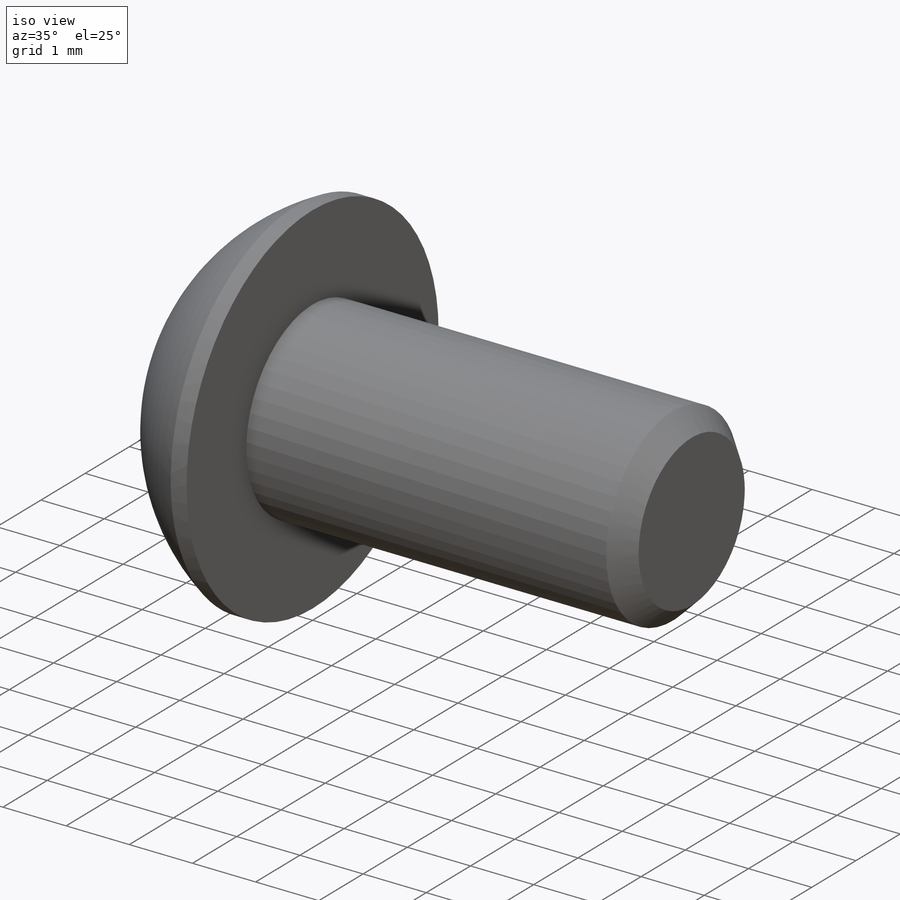
[diagram: iso view]
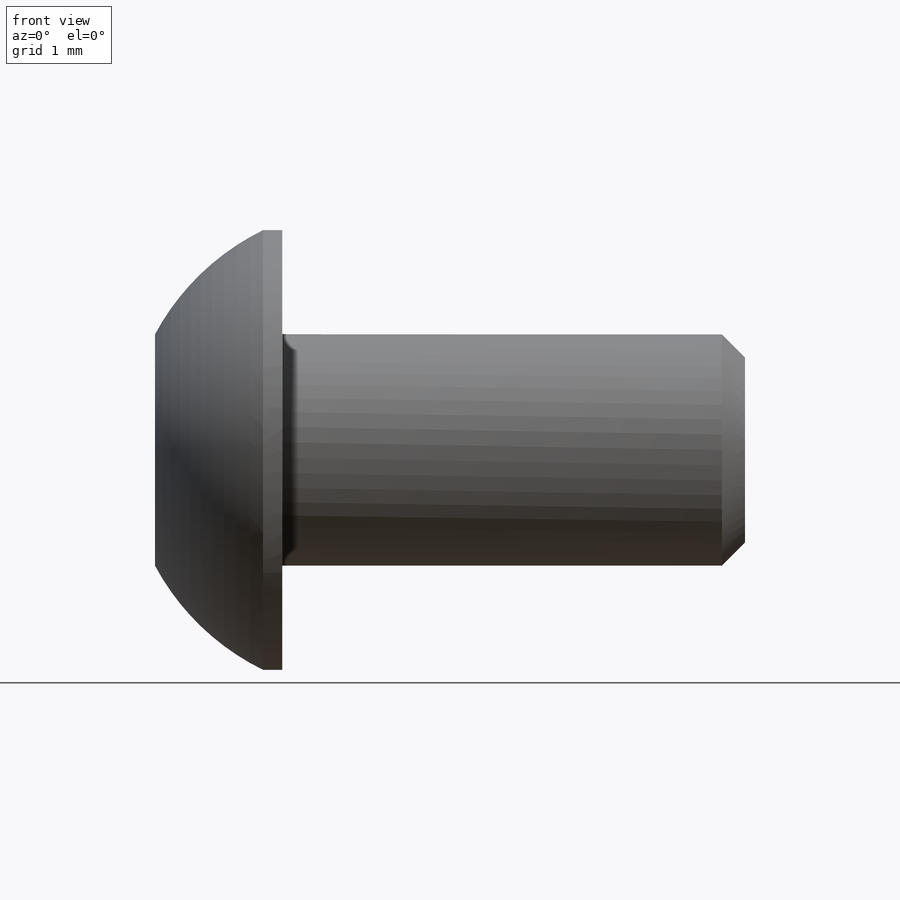
[diagram: front view]
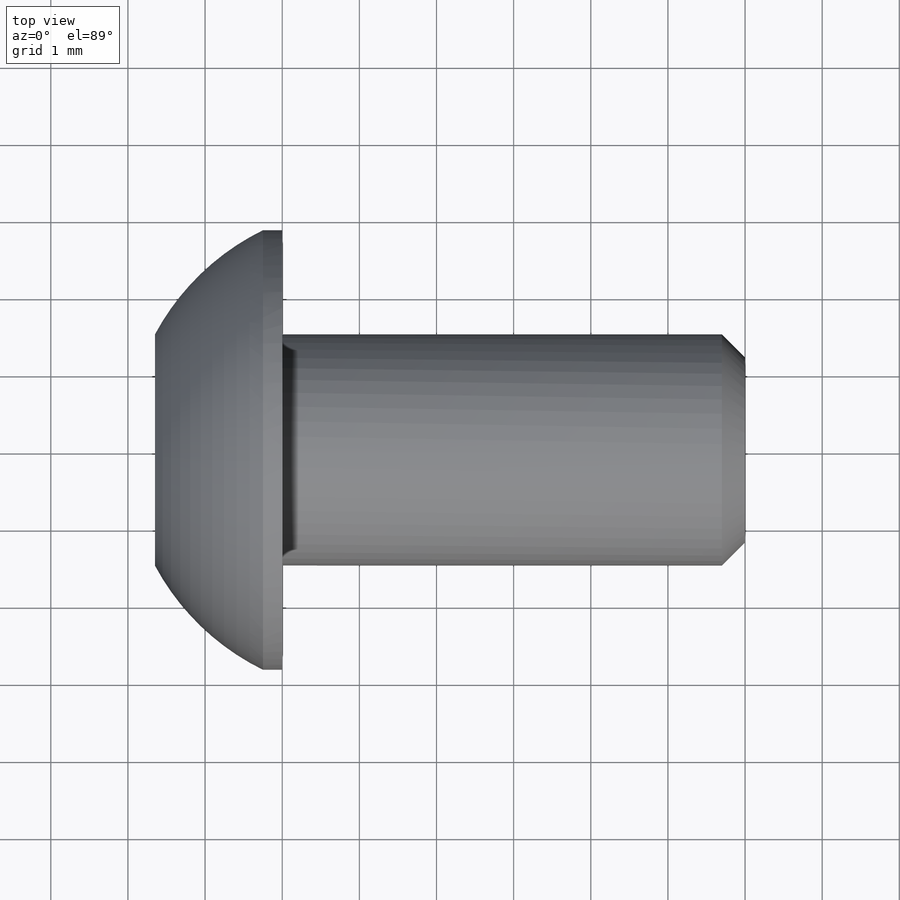
[diagram: top view]
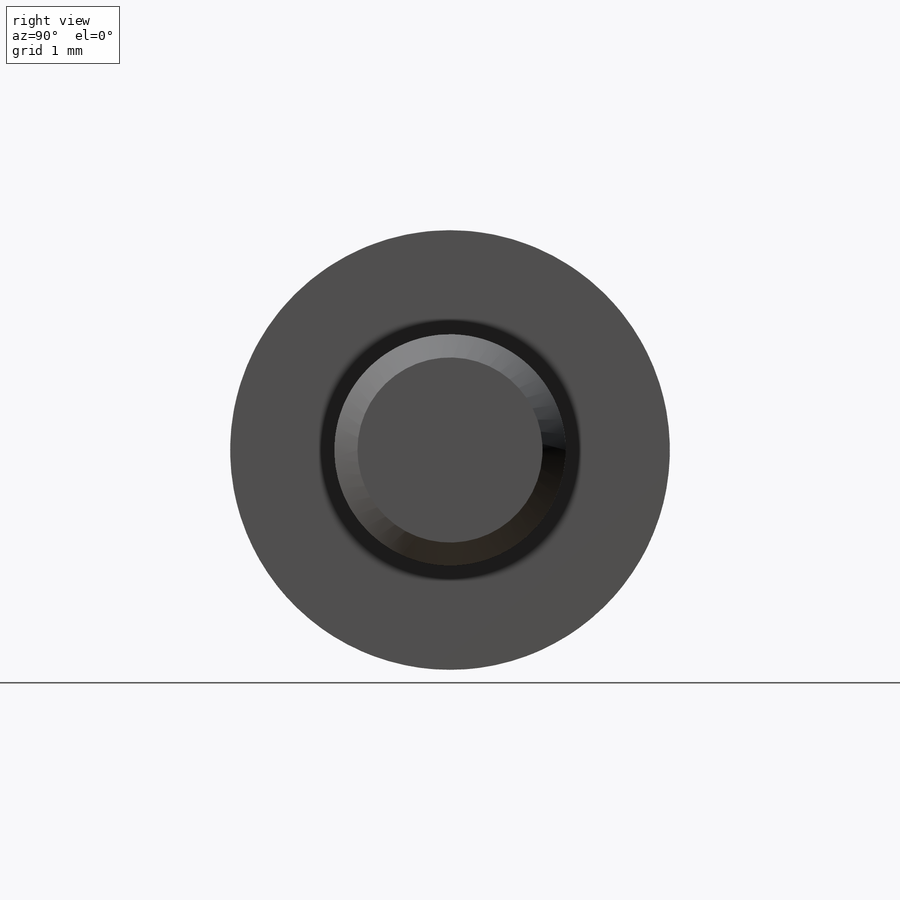
[diagram: right view]
SOLIDWORKS PART (.sldprt)
format: sldprt  version: not decoded by parser v0  size: 529,920 bytes
history: native  units: mm
features: sketch x4, cut_extrude x2, material x1, extrude x1, chamfer x1, revolve x1 (+14 scaffold rows collapsed)
feature tree (24):
  scaffold x14  (default folders/planes/origin — collapsed)
  material  "Plain Carbon Steel"
  sketch  "Sketch2"  dims[D1=3.0mm]
  extrude  "Boss-Extrude1"  Depth=6mm
  chamfer  "Chamfer1"  Distance=0.3mm Angle=45deg
  sketch  "Sketch6"  dims[c1.D3=1.0mm c1.D1=3.0mm c1.D2=5.5mm c2.D1=5.7mm c2.D2=1.65mm c2.D3=0.25mm c2.D4=3.0mm]
  revolve  "Revolve1"  Angle=360deg
  sketch  "Sketch7"  dims[D1=2.0mm]
  cut_extrude  "Cut-Extrude1"  Depth=1.2mm
  sketch  "Sketch8"  dims[c1.D1=~3.610642mm c2.D1=~3.610642mm c3.D1=~3.610642mm c4.D1=~3.610642mm c5.D1=~3.610642mm c6.D1=0.05mm]
  cut_extrude  "Cut-Extrude2"  Depth=1mm
decode coverage: 9 of 9 modeling features carry decoded parameters
note: ~ marks probable driven/reference dimensions
note: suppression state not decoded; provenance and decode notes live in map.json
